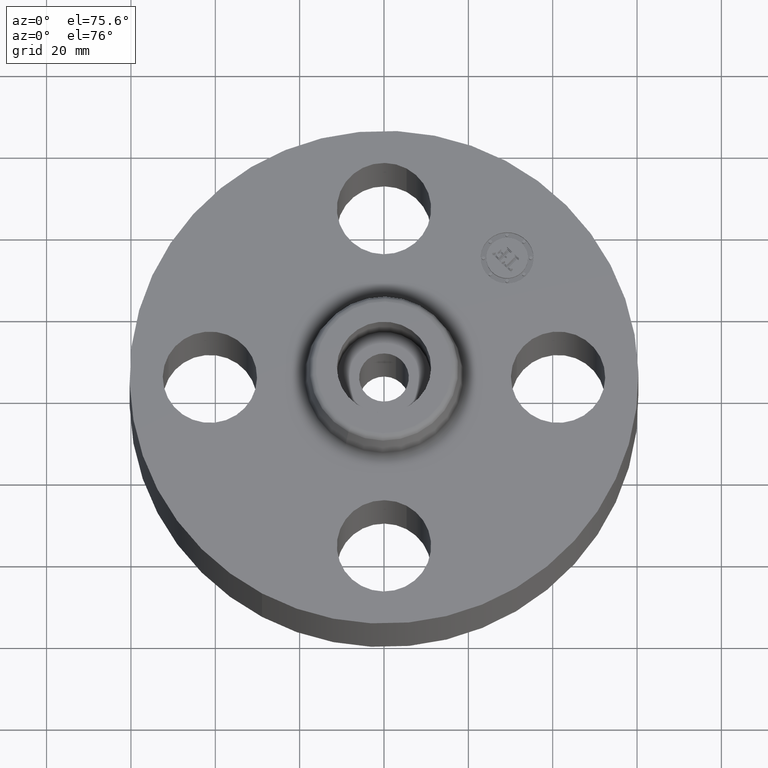
[diagram: clean part render]
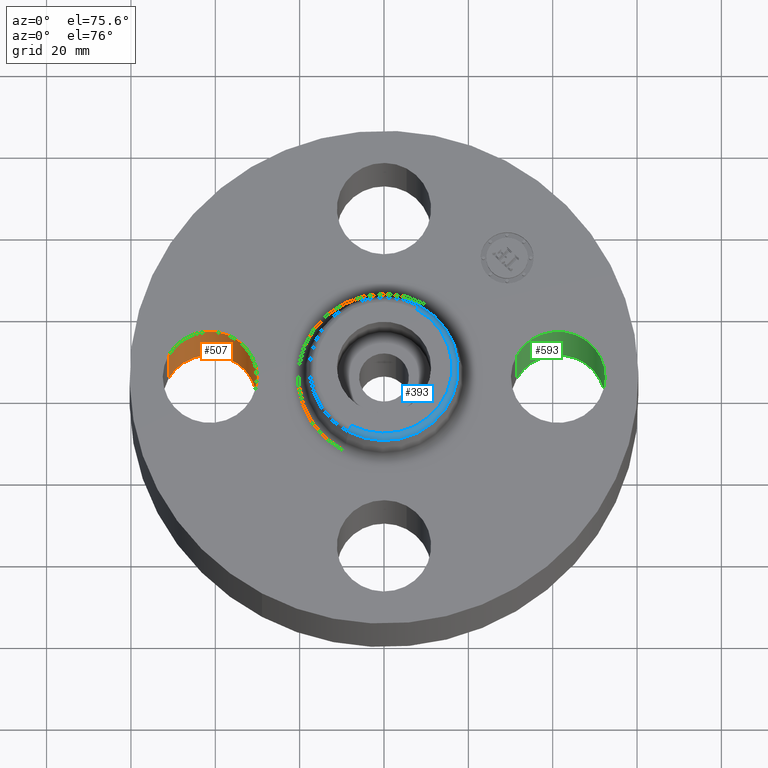
[diagram: same view with three faces highlighted in distinct colors, each labeled with its STEP entity id]
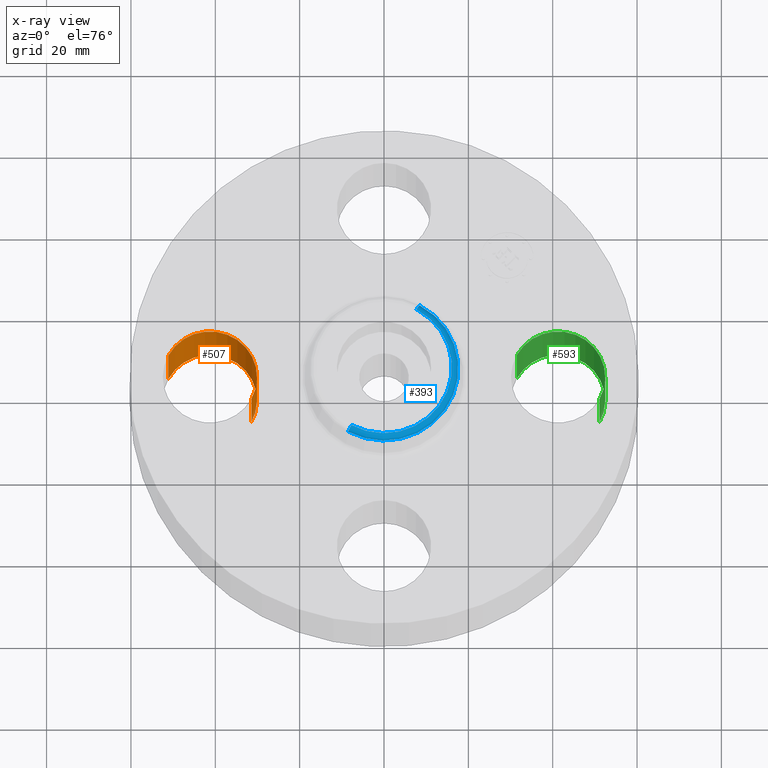
[diagram: x-ray of the same camera — body ghosted, the three highlighted faces saturated]
A machine part, auxiliary view with three faces highlighted in distinct colors.
The next image is the same camera in x-ray (body ghosted, the three faces saturated) — at least one of them is partly hidden behind the body in this view.
Their STEP definitions:

[orange] entity #507 — the highlighted cylindrical surface (partial cylindrical patch) has radius 11.176 mm, axis along (-0, 0, -1).
#194=AXIS2_PLACEMENT_3D('Circle Axis2P3D',#192,#193,$) ;
#480=AXIS2_PLACEMENT_3D('Cylinder Axis2P3D',#477,#478,#479) ;
#498=AXIS2_PLACEMENT_3D('Circle Axis2P3D',#496,#497,$) ;
#187=CARTESIAN_POINT('Vertex',(-1.23886367277,-0.210947236987,0.)) ;
#189=CARTESIAN_POINT('Vertex',(-2.01113632724,0.210947236987,0.)) ;
#192=CARTESIAN_POINT('Axis2P3D Location',(-1.62500000001,-1.74838271595E-016,0.)) ;
#477=CARTESIAN_POINT('Axis2P3D Location',(-1.62500000001,-1.99005104862E-016,0.87606299213)) ;
#482=CARTESIAN_POINT('Line Origine',(-2.01113632724,0.210947236987,0.440000000002)) ;
#486=CARTESIAN_POINT('Vertex',(-2.01113632724,0.210947236987,0.880000000004)) ;
#489=CARTESIAN_POINT('Line Origine',(-1.23886367277,-0.210947236987,0.440000000002)) ;
#493=CARTESIAN_POINT('Vertex',(-1.23886367277,-0.210947236987,0.880000000004)) ;
#496=CARTESIAN_POINT('Axis2P3D Location',(-1.62500000001,-1.99005104862E-016,0.880000000004)) ;
#193=DIRECTION('Axis2P3D Direction',(0.,0.,-0.0393700787402)) ;
#478=DIRECTION('Axis2P3D Direction',(-0.,0.,-0.0393700787402)) ;
#479=DIRECTION('Axis2P3D XDirection',(0.0345504945626,-0.0188750212049,-0.)) ;
#483=DIRECTION('Vector Direction',(0.,0.,-0.0393700787402)) ;
#490=DIRECTION('Vector Direction',(0.,0.,-0.0393700787402)) ;
#497=DIRECTION('Axis2P3D Direction',(-0.,0.,-0.0393700787402)) ;
#484=VECTOR('Line Direction',#483,0.0393700787402) ;
#491=VECTOR('Line Direction',#490,0.0393700787402) ;
#502=ORIENTED_EDGE('',*,*,#488,.F.) ;
#503=ORIENTED_EDGE('',*,*,#196,.T.) ;
#504=ORIENTED_EDGE('',*,*,#495,.T.) ;
#505=ORIENTED_EDGE('',*,*,#500,.F.) ;
#507=ADVANCED_FACE('PartBody',(#506),#481,.F.) ;
#195=CIRCLE('generated circle',#194,0.440000000002) ;
#499=CIRCLE('generated circle',#498,0.440000000002) ;
#481=CYLINDRICAL_SURFACE('generated cylinder',#480,0.440000000002) ;
#196=EDGE_CURVE('',#190,#188,#195,.T.) ;
#488=EDGE_CURVE('',#190,#487,#485,.F.) ;
#495=EDGE_CURVE('',#188,#494,#492,.F.) ;
#500=EDGE_CURVE('',#487,#494,#499,.T.) ;
#501=EDGE_LOOP('',(#502,#503,#504,#505)) ;
#506=FACE_OUTER_BOUND('',#501,.T.) ;
#485=LINE('Line',#482,#484) ;
#492=LINE('Line',#489,#491) ;
#188=VERTEX_POINT('',#187) ;
#190=VERTEX_POINT('',#189) ;
#487=VERTEX_POINT('',#486) ;
#494=VERTEX_POINT('',#493) ;

[blue] entity #393 — the highlighted toroidal blend (fillet) surface has major radius 16.1141 mm and minor (blend) radius 1.524 mm.
#334=AXIS2_PLACEMENT_3D('Circle Axis2P3D',#332,#333,$) ;
#366=AXIS2_PLACEMENT_3D('Torus Axis2P3D',#363,#364,#365) ;
#370=AXIS2_PLACEMENT_3D('Circle Axis2P3D',#368,#369,$) ;
#377=AXIS2_PLACEMENT_3D('Circle Axis2P3D',#375,#376,$) ;
#384=AXIS2_PLACEMENT_3D('Circle Axis2P3D',#382,#383,$) ;
#329=CARTESIAN_POINT('Vertex',(0.332482332294,0.608604826951,1.20041889066)) ;
#332=CARTESIAN_POINT('Axis2P3D Location',(0.,0.,1.20041889066)) ;
#336=CARTESIAN_POINT('Vertex',(-0.332482332294,-0.608604826951,1.20041889066)) ;
#363=CARTESIAN_POINT('Axis2P3D Location',(0.,0.,1.19)) ;
#368=CARTESIAN_POINT('Axis2P3D Location',(0.304153813049,0.556749820299,1.19)) ;
#372=CARTESIAN_POINT('Vertex',(0.304153813049,0.556749820299,1.25000000001)) ;
#375=CARTESIAN_POINT('Axis2P3D Location',(0.,0.,1.25000000001)) ;
#379=CARTESIAN_POINT('Vertex',(-0.304153813049,-0.556749820299,1.25000000001)) ;
#382=CARTESIAN_POINT('Axis2P3D Location',(-0.304153813049,-0.556749820299,1.19)) ;
#333=DIRECTION('Axis2P3D Direction',(0.,0.,-0.0393700787402)) ;
#364=DIRECTION('Axis2P3D Direction',(0.,0.,-0.0393700787402)) ;
#365=DIRECTION('Axis2P3D XDirection',(-0.0188750212049,-0.0345504945626,0.)) ;
#369=DIRECTION('Axis2P3D Direction',(-0.0345504945626,0.0188750212049,0.)) ;
#376=DIRECTION('Axis2P3D Direction',(0.,0.,-0.0393700787402)) ;
#383=DIRECTION('Axis2P3D Direction',(0.0345504945626,-0.0188750212049,0.)) ;
#388=ORIENTED_EDGE('',*,*,#338,.F.) ;
#389=ORIENTED_EDGE('',*,*,#374,.T.) ;
#390=ORIENTED_EDGE('',*,*,#381,.T.) ;
#391=ORIENTED_EDGE('',*,*,#386,.F.) ;
#393=ADVANCED_FACE('PartBody',(#392),#367,.T.) ;
#335=CIRCLE('generated circle',#334,0.693501504451) ;
#371=CIRCLE('generated circle',#370,0.0600000000002) ;
#378=CIRCLE('generated circle',#377,0.63441303927) ;
#385=CIRCLE('generated circle',#384,0.0600000000002) ;
#367=TOROIDAL_SURFACE('homeo Torus',#366,0.63441303927,0.0600000000002) ;
#338=EDGE_CURVE('',#330,#337,#335,.T.) ;
#374=EDGE_CURVE('',#330,#373,#371,.F.) ;
#381=EDGE_CURVE('',#373,#380,#378,.T.) ;
#386=EDGE_CURVE('',#337,#380,#385,.F.) ;
#387=EDGE_LOOP('',(#388,#389,#390,#391)) ;
#392=FACE_OUTER_BOUND('',#387,.T.) ;
#330=VERTEX_POINT('',#329) ;
#337=VERTEX_POINT('',#336) ;
#373=VERTEX_POINT('',#372) ;
#380=VERTEX_POINT('',#379) ;

[green] entity #593 — the highlighted cylindrical surface (partial cylindrical patch) has radius 11.176 mm, axis along (0, -0, -1).
#154=AXIS2_PLACEMENT_3D('Circle Axis2P3D',#152,#153,$) ;
#566=AXIS2_PLACEMENT_3D('Cylinder Axis2P3D',#563,#564,#565) ;
#584=AXIS2_PLACEMENT_3D('Circle Axis2P3D',#582,#583,$) ;
#147=CARTESIAN_POINT('Vertex',(2.01113632724,-0.210947236987,0.)) ;
#149=CARTESIAN_POINT('Vertex',(1.23886367277,0.210947236987,0.)) ;
#152=CARTESIAN_POINT('Axis2P3D Location',(1.62500000001,-3.49676543189E-017,0.)) ;
#563=CARTESIAN_POINT('Axis2P3D Location',(1.62500000001,0.,0.87606299213)) ;
#568=CARTESIAN_POINT('Line Origine',(1.23886367277,0.210947236987,0.440000000002)) ;
#572=CARTESIAN_POINT('Vertex',(1.23886367277,0.210947236987,0.880000000004)) ;
#575=CARTESIAN_POINT('Line Origine',(2.01113632724,-0.210947236987,0.440000000002)) ;
#579=CARTESIAN_POINT('Vertex',(2.01113632724,-0.210947236987,0.880000000004)) ;
#582=CARTESIAN_POINT('Axis2P3D Location',(1.62500000001,0.,0.880000000004)) ;
#153=DIRECTION('Axis2P3D Direction',(0.,0.,-0.0393700787402)) ;
#564=DIRECTION('Axis2P3D Direction',(0.,-0.,-0.0393700787402)) ;
#565=DIRECTION('Axis2P3D XDirection',(0.0345504945626,-0.0188750212049,0.)) ;
#569=DIRECTION('Vector Direction',(0.,0.,-0.0393700787402)) ;
#576=DIRECTION('Vector Direction',(0.,0.,-0.0393700787402)) ;
#583=DIRECTION('Axis2P3D Direction',(0.,-0.,-0.0393700787402)) ;
#570=VECTOR('Line Direction',#569,0.0393700787402) ;
#577=VECTOR('Line Direction',#576,0.0393700787402) ;
#588=ORIENTED_EDGE('',*,*,#574,.F.) ;
#589=ORIENTED_EDGE('',*,*,#156,.T.) ;
#590=ORIENTED_EDGE('',*,*,#581,.T.) ;
#591=ORIENTED_EDGE('',*,*,#586,.F.) ;
#593=ADVANCED_FACE('PartBody',(#592),#567,.F.) ;
#155=CIRCLE('generated circle',#154,0.440000000002) ;
#585=CIRCLE('generated circle',#584,0.440000000002) ;
#567=CYLINDRICAL_SURFACE('generated cylinder',#566,0.440000000002) ;
#156=EDGE_CURVE('',#150,#148,#155,.T.) ;
#574=EDGE_CURVE('',#150,#573,#571,.F.) ;
#581=EDGE_CURVE('',#148,#580,#578,.F.) ;
#586=EDGE_CURVE('',#573,#580,#585,.T.) ;
#587=EDGE_LOOP('',(#588,#589,#590,#591)) ;
#592=FACE_OUTER_BOUND('',#587,.T.) ;
#571=LINE('Line',#568,#570) ;
#578=LINE('Line',#575,#577) ;
#148=VERTEX_POINT('',#147) ;
#150=VERTEX_POINT('',#149) ;
#573=VERTEX_POINT('',#572) ;
#580=VERTEX_POINT('',#579) ;